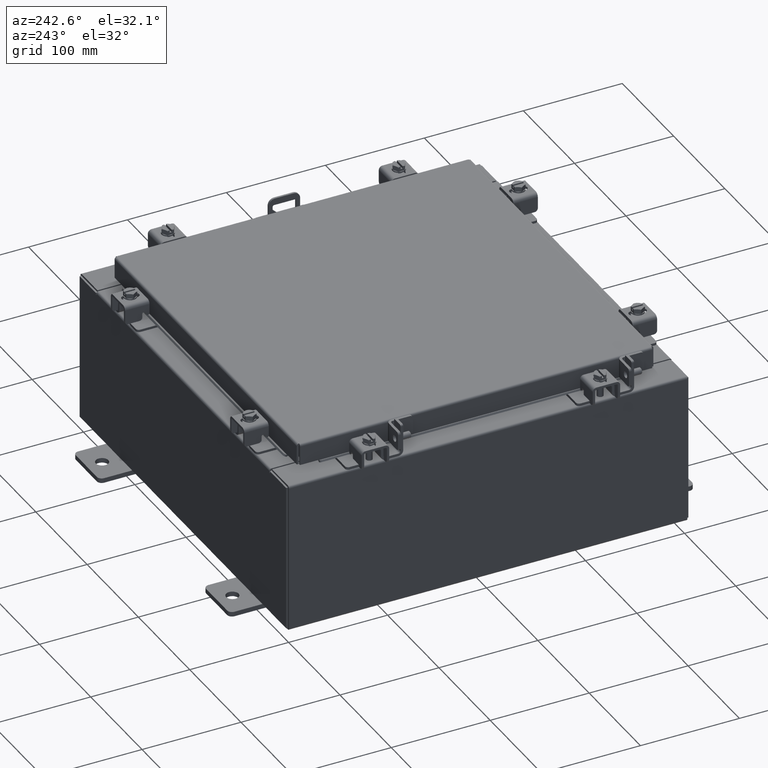
[diagram: clean part render]
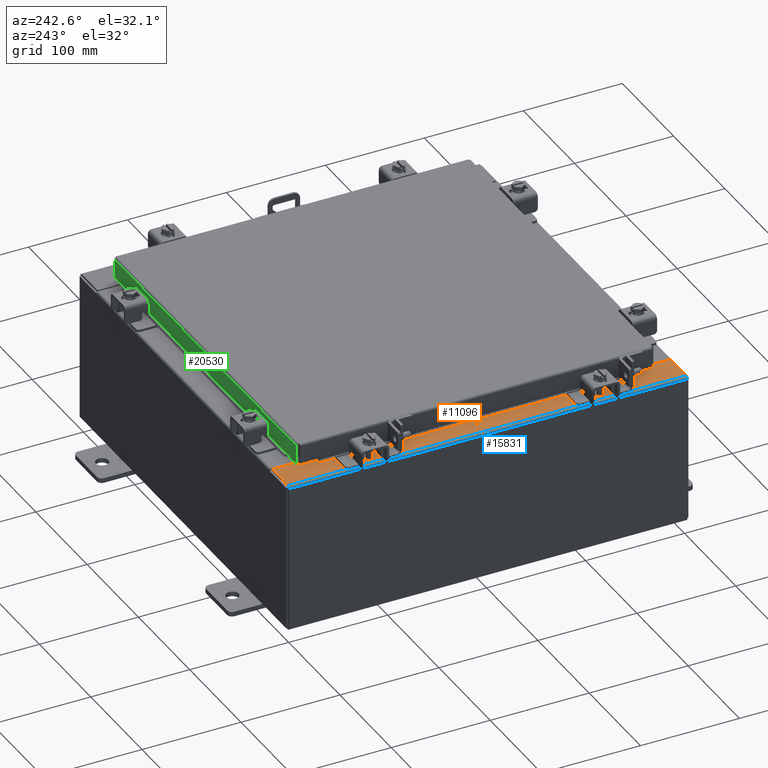
[diagram: same view with three faces highlighted in distinct colors, each labeled with its STEP entity id]
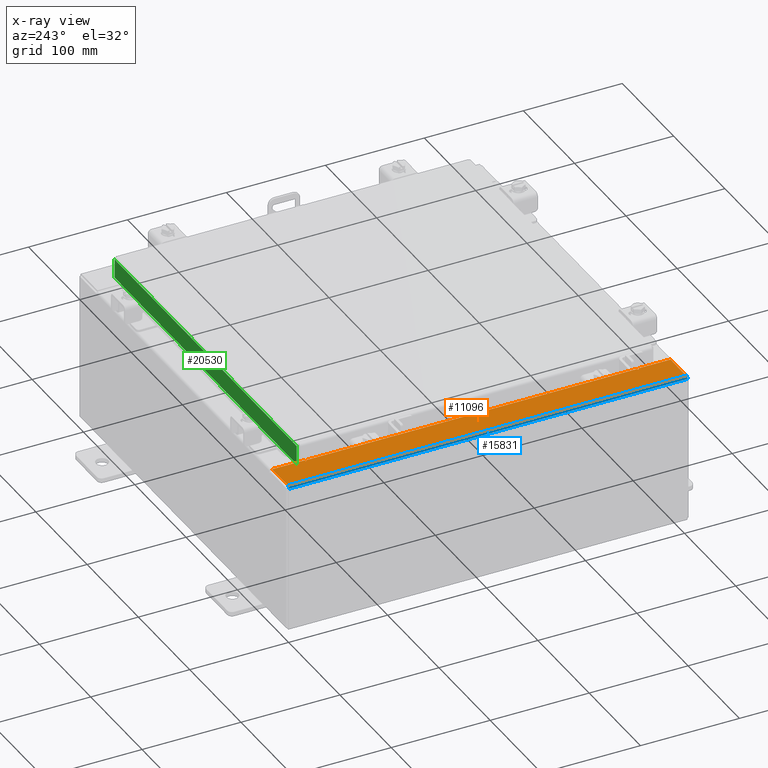
[diagram: x-ray of the same camera — body ghosted, the three highlighted faces saturated]
A machine part, auxiliary view with three faces highlighted in distinct colors.
The next image is the same camera in x-ray (body ghosted, the three faces saturated) — at least one of them is partly hidden behind the body in this view.
Their STEP definitions:

[orange] entity #11096 — the highlighted planar face has unit normal (0, 0, -1).
#105 = EDGE_CURVE ( 'NONE', #4714, #18800, #7681, .T. ) ;
#668 = EDGE_CURVE ( 'NONE', #1194, #4714, #3457, .T. ) ;
#1144 = CARTESIAN_POINT ( 'NONE',  ( -4.252457061908993700E-014, 0.0000000000000000000, 5.925300000000056000 ) ) ;
#1177 = ORIENTED_EDGE ( 'NONE', *, *, #13368, .F. ) ;
#1194 = VERTEX_POINT ( 'NONE', #18381 ) ;
#1311 = ORIENTED_EDGE ( 'NONE', *, *, #16801, .T. ) ;
#1838 = ORIENTED_EDGE ( 'NONE', *, *, #105, .T. ) ;
#2412 = VECTOR ( 'NONE', #14478, 39.37007874015748100 ) ;
#2806 = LINE ( 'NONE', #6536, #11291 ) ;
#2823 = ORIENTED_EDGE ( 'NONE', *, *, #16809, .F. ) ;
#2848 = DIRECTION ( 'NONE',  ( -1.000000000000000000, 0.0000000000000000000, -7.132762385546378400E-015 ) ) ;
#3310 = ORIENTED_EDGE ( 'NONE', *, *, #3847, .F. ) ;
#3401 = VERTEX_POINT ( 'NONE', #12130 ) ;
#3457 = LINE ( 'NONE', #5109, #21037 ) ;
#3685 = CARTESIAN_POINT ( 'NONE',  ( -6.712700000000023000, 6.593749999999999100, 5.925300000000008000 ) ) ;
#3703 = FACE_OUTER_BOUND ( 'NONE', #4366, .T. ) ;
#3706 = VECTOR ( 'NONE', #16696, 39.37007874015748100 ) ;
#3847 = EDGE_CURVE ( 'NONE', #6462, #6764, #21083, .T. ) ;
#4033 = DIRECTION ( 'NONE',  ( 1.000000000000000000, 0.0000000000000000000, 0.0000000000000000000 ) ) ;
#4366 = EDGE_LOOP ( 'NONE', ( #4776, #18856, #1838, #18009, #1311, #19530, #1177, #6792, #18194, #2823, #3310, #18917 ) ) ;
#4714 = VERTEX_POINT ( 'NONE', #14075 ) ;
#4776 = ORIENTED_EDGE ( 'NONE', *, *, #6541, .F. ) ;
#4876 = CARTESIAN_POINT ( 'NONE',  ( -6.750050000000023000, 6.612424999999998200, 5.925300000000008000 ) ) ;
#4968 = DIRECTION ( 'NONE',  ( -4.822655666717293700E-031, 1.000000000000000000, -3.439885693800320600E-045 ) ) ;
#5109 = CARTESIAN_POINT ( 'NONE',  ( -6.699700000000021300, -3.231034617030575100E-030, 5.925300000000008000 ) ) ;
#5501 = CIRCLE ( 'NONE', #10138, 0.01867500000000058700 ) ;
#5527 = CIRCLE ( 'NONE', #16704, 0.01867500000000058700 ) ;
#5573 = CARTESIAN_POINT ( 'NONE',  ( -4.252457061908993700E-014, -7.925300000000000000, 5.925300000000056000 ) ) ;
#5666 = VERTEX_POINT ( 'NONE', #17549 ) ;
#6462 = VERTEX_POINT ( 'NONE', #21707 ) ;
#6536 = CARTESIAN_POINT ( 'NONE',  ( -6.750050000000023000, -6.631099999999999100, 5.925300000000008000 ) ) ;
#6541 = EDGE_CURVE ( 'NONE', #1194, #18229, #16734, .T. ) ;
#6591 = DIRECTION ( 'NONE',  ( 1.000000000000000000, 0.0000000000000000000, 0.0000000000000000000 ) ) ;
#6764 = VERTEX_POINT ( 'NONE', #3685 ) ;
#6792 = ORIENTED_EDGE ( 'NONE', *, *, #12229, .F. ) ;
#7314 = CARTESIAN_POINT ( 'NONE',  ( -6.750050000000023000, -6.631099999999999100, 5.925300000000008000 ) ) ;
#7336 = CARTESIAN_POINT ( 'NONE',  ( -6.712700000000023000, 6.593749999999999100, 5.925300000000008000 ) ) ;
#7463 = VECTOR ( 'NONE', #4033, 39.37007874015748100 ) ;
#7681 = LINE ( 'NONE', #12478, #16738 ) ;
#7971 = DIRECTION ( 'NONE',  ( -7.132762385546378400E-015, -0.0000000000000000000, 1.000000000000000000 ) ) ;
#8220 = CARTESIAN_POINT ( 'NONE',  ( -6.699700000000021300, 6.631100000000000000, 5.925300000000008000 ) ) ;
#8253 = DIRECTION ( 'NONE',  ( 1.000000000000000000, -2.170286390199955400E-014, 0.0000000000000000000 ) ) ;
#8299 = LINE ( 'NONE', #5573, #11742 ) ;
#8334 = LINE ( 'NONE', #18269, #16859 ) ;
#9011 = CARTESIAN_POINT ( 'NONE',  ( -6.699700000000021300, -7.925300000000000000, 5.925300000000008000 ) ) ;
#9606 = CARTESIAN_POINT ( 'NONE',  ( -7.912300000000022300, -7.925300000000000000, 5.925299999999999100 ) ) ;
#10138 = AXIS2_PLACEMENT_3D ( 'NONE', #18172, #7971, #19898 ) ;
#10669 = AXIS2_PLACEMENT_3D ( 'NONE', #1144, #13021, #2848 ) ;
#11096 = ADVANCED_FACE ( 'NONE', ( #3703 ), #19790, .F. ) ;
#11291 = VECTOR ( 'NONE', #8253, 39.37007874015748100 ) ;
#11332 = CARTESIAN_POINT ( 'NONE',  ( -7.912300000000022300, 7.925299999999998200, 5.925299999999999100 ) ) ;
#11742 = VECTOR ( 'NONE', #20907, 39.37007874015748100 ) ;
#11801 = EDGE_CURVE ( 'NONE', #18229, #6462, #5527, .T. ) ;
#12130 = CARTESIAN_POINT ( 'NONE',  ( -6.750050000000023000, -6.593749999999999100, 5.925300000000008000 ) ) ;
#12229 = EDGE_CURVE ( 'NONE', #3401, #15399, #5501, .T. ) ;
#12242 = VERTEX_POINT ( 'NONE', #9606 ) ;
#12478 = CARTESIAN_POINT ( 'NONE',  ( -4.252457061908993700E-014, 7.925299999999998200, 5.925300000000056000 ) ) ;
#12557 = CARTESIAN_POINT ( 'NONE',  ( -6.750050000000023000, 6.593749999999999100, 5.925300000000008000 ) ) ;
#12761 = CARTESIAN_POINT ( 'NONE',  ( -7.912300000000021400, 7.925299999999998200, 5.925299999999999100 ) ) ;
#13021 = DIRECTION ( 'NONE',  ( 7.132762385546378400E-015, 0.0000000000000000000, -1.000000000000000000 ) ) ;
#13052 = CARTESIAN_POINT ( 'NONE',  ( -6.750050000000023000, 6.631099999999998200, 5.925300000000008000 ) ) ;
#13368 = EDGE_CURVE ( 'NONE', #15399, #5666, #2806, .T. ) ;
#13376 = EDGE_CURVE ( 'NONE', #16089, #3401, #19833, .T. ) ;
#14075 = CARTESIAN_POINT ( 'NONE',  ( -6.699700000000021300, 7.925299999999998200, 5.925300000000008000 ) ) ;
#14478 = DIRECTION ( 'NONE',  ( 6.893992640440775600E-017, 1.000000000000000000, 4.917321139196952400E-031 ) ) ;
#15307 = VECTOR ( 'NONE', #20181, 39.37007874015748100 ) ;
#15399 = VERTEX_POINT ( 'NONE', #7314 ) ;
#15675 = EDGE_CURVE ( 'NONE', #16094, #5666, #8334, .T. ) ;
#15976 = LINE ( 'NONE', #12761, #2412 ) ;
#16089 = VERTEX_POINT ( 'NONE', #17576 ) ;
#16094 = VERTEX_POINT ( 'NONE', #9011 ) ;
#16279 = VECTOR ( 'NONE', #19244, 39.37007874015748100 ) ;
#16696 = DIRECTION ( 'NONE',  ( -1.000000000000000000, -2.170286390199955400E-014, 0.0000000000000000000 ) ) ;
#16704 = AXIS2_PLACEMENT_3D ( 'NONE', #4876, #16775, #6591 ) ;
#16734 = LINE ( 'NONE', #8220, #3706 ) ;
#16738 = VECTOR ( 'NONE', #20912, 39.37007874015748100 ) ;
#16775 = DIRECTION ( 'NONE',  ( -7.132762385546378400E-015, -0.0000000000000000000, 1.000000000000000000 ) ) ;
#16801 = EDGE_CURVE ( 'NONE', #12242, #16094, #8299, .T. ) ;
#16809 = EDGE_CURVE ( 'NONE', #6764, #16089, #20293, .T. ) ;
#16859 = VECTOR ( 'NONE', #19983, 39.37007874015748100 ) ;
#17549 = CARTESIAN_POINT ( 'NONE',  ( -6.699700000000021300, -6.631100000000000900, 5.925300000000008000 ) ) ;
#17576 = CARTESIAN_POINT ( 'NONE',  ( -6.712700000000023000, -6.593749999999999100, 5.925300000000008000 ) ) ;
#18009 = ORIENTED_EDGE ( 'NONE', *, *, #18095, .F. ) ;
#18095 = EDGE_CURVE ( 'NONE', #12242, #18800, #15976, .T. ) ;
#18172 = CARTESIAN_POINT ( 'NONE',  ( -6.750050000000023000, -6.612424999999998200, 5.925300000000008000 ) ) ;
#18194 = ORIENTED_EDGE ( 'NONE', *, *, #13376, .F. ) ;
#18229 = VERTEX_POINT ( 'NONE', #13052 ) ;
#18269 = CARTESIAN_POINT ( 'NONE',  ( -6.699700000000021300, -3.231034617030575100E-030, 5.925300000000008000 ) ) ;
#18381 = CARTESIAN_POINT ( 'NONE',  ( -6.699700000000021300, 6.631100000000000000, 5.925300000000008000 ) ) ;
#18800 = VERTEX_POINT ( 'NONE', #11332 ) ;
#18856 = ORIENTED_EDGE ( 'NONE', *, *, #668, .T. ) ;
#18917 = ORIENTED_EDGE ( 'NONE', *, *, #11801, .F. ) ;
#19244 = DIRECTION ( 'NONE',  ( -0.0000000000000000000, -1.000000000000000000, -0.0000000000000000000 ) ) ;
#19530 = ORIENTED_EDGE ( 'NONE', *, *, #15675, .T. ) ;
#19790 = PLANE ( 'NONE',  #10669 ) ;
#19833 = LINE ( 'NONE', #20095, #15307 ) ;
#19898 = DIRECTION ( 'NONE',  ( 1.000000000000000000, 0.0000000000000000000, 0.0000000000000000000 ) ) ;
#19983 = DIRECTION ( 'NONE',  ( -4.822655666717293700E-031, 1.000000000000000000, -3.439885693800320600E-045 ) ) ;
#20095 = CARTESIAN_POINT ( 'NONE',  ( -6.712700000000023000, -6.593749999999999100, 5.925300000000008000 ) ) ;
#20181 = DIRECTION ( 'NONE',  ( -1.000000000000000000, 0.0000000000000000000, 0.0000000000000000000 ) ) ;
#20293 = LINE ( 'NONE', #7336, #16279 ) ;
#20907 = DIRECTION ( 'NONE',  ( 1.000000000000000000, 8.758115402030108600E-047, 7.132762385546378400E-015 ) ) ;
#20912 = DIRECTION ( 'NONE',  ( -1.000000000000000000, -6.146651423996189400E-032, -7.132762385546378400E-015 ) ) ;
#21037 = VECTOR ( 'NONE', #4968, 39.37007874015748100 ) ;
#21083 = LINE ( 'NONE', #12557, #7463 ) ;
#21707 = CARTESIAN_POINT ( 'NONE',  ( -6.750050000000023000, 6.593749999999999100, 5.925300000000008000 ) ) ;

[blue] entity #15831 — the highlighted cylindrical surface (edge-blend (fillet) strip) has radius 2.2276 mm, axis along (-0, -1, -0).
#153 = ORIENTED_EDGE ( 'NONE', *, *, #18095, .T. ) ;
#1061 = DIRECTION ( 'NONE',  ( 0.0000000000000000000, 1.000000000000000000, 0.0000000000000000000 ) ) ;
#1956 = DIRECTION ( 'NONE',  ( 0.0000000000000000000, 0.0000000000000000000, -1.000000000000000000 ) ) ;
#2105 = AXIS2_PLACEMENT_3D ( 'NONE', #3681, #3597, #1956 ) ;
#2412 = VECTOR ( 'NONE', #14478, 39.37007874015748100 ) ;
#2640 = VECTOR ( 'NONE', #1061, 39.37007874015748100 ) ;
#3107 = CARTESIAN_POINT ( 'NONE',  ( -7.912300000000022300, 7.925299999999998200, 5.837599999999999200 ) ) ;
#3408 = EDGE_CURVE ( 'NONE', #12242, #7544, #16540, .T. ) ;
#3459 = DIRECTION ( 'NONE',  ( -0.0000000000000000000, -1.000000000000000000, -0.0000000000000000000 ) ) ;
#3597 = DIRECTION ( 'NONE',  ( -0.0000000000000000000, -1.000000000000000000, -0.0000000000000000000 ) ) ;
#3681 = CARTESIAN_POINT ( 'NONE',  ( -7.912300000000022300, -7.925300000000000000, 5.837599999999999200 ) ) ;
#4719 = EDGE_LOOP ( 'NONE', ( #7708, #21781, #153, #10179 ) ) ;
#4811 = DIRECTION ( 'NONE',  ( 0.0000000000000000000, 0.0000000000000000000, -1.000000000000000000 ) ) ;
#5002 = CIRCLE ( 'NONE', #14420, 0.08770000000000026400 ) ;
#5145 = FACE_OUTER_BOUND ( 'NONE', #4719, .T. ) ;
#5153 = DIRECTION ( 'NONE',  ( -1.245996804407870000E-014, 0.0000000000000000000, 1.000000000000000000 ) ) ;
#7544 = VERTEX_POINT ( 'NONE', #15624 ) ;
#7668 = LINE ( 'NONE', #19712, #2640 ) ;
#7708 = ORIENTED_EDGE ( 'NONE', *, *, #7817, .F. ) ;
#7817 = EDGE_CURVE ( 'NONE', #7544, #10171, #7668, .T. ) ;
#9606 = CARTESIAN_POINT ( 'NONE',  ( -7.912300000000022300, -7.925300000000000000, 5.925299999999999100 ) ) ;
#10171 = VERTEX_POINT ( 'NONE', #17139 ) ;
#10179 = ORIENTED_EDGE ( 'NONE', *, *, #11775, .F. ) ;
#11332 = CARTESIAN_POINT ( 'NONE',  ( -7.912300000000022300, 7.925299999999998200, 5.925299999999999100 ) ) ;
#11775 = EDGE_CURVE ( 'NONE', #10171, #18800, #5002, .T. ) ;
#12242 = VERTEX_POINT ( 'NONE', #9606 ) ;
#12761 = CARTESIAN_POINT ( 'NONE',  ( -7.912300000000021400, 7.925299999999998200, 5.925299999999999100 ) ) ;
#13619 = CARTESIAN_POINT ( 'NONE',  ( -7.912300000000022300, -7.925300000000000900, 5.837599999999999200 ) ) ;
#14420 = AXIS2_PLACEMENT_3D ( 'NONE', #3107, #15004, #4811 ) ;
#14478 = DIRECTION ( 'NONE',  ( 6.893992640440775600E-017, 1.000000000000000000, 4.917321139196952400E-031 ) ) ;
#15004 = DIRECTION ( 'NONE',  ( 0.0000000000000000000, 1.000000000000000000, 0.0000000000000000000 ) ) ;
#15624 = CARTESIAN_POINT ( 'NONE',  ( -8.000000000000023100, -7.925300000000000000, 5.837599999999999200 ) ) ;
#15661 = AXIS2_PLACEMENT_3D ( 'NONE', #13619, #3459, #5153 ) ;
#15831 = ADVANCED_FACE ( 'NONE', ( #5145 ), #17642, .T. ) ;
#15976 = LINE ( 'NONE', #12761, #2412 ) ;
#16540 = CIRCLE ( 'NONE', #2105, 0.08770000000000026400 ) ;
#17139 = CARTESIAN_POINT ( 'NONE',  ( -8.000000000000021300, 7.925299999999998200, 5.837599999999999200 ) ) ;
#17642 = CYLINDRICAL_SURFACE ( 'NONE', #15661, 0.08770000000000026400 ) ;
#18095 = EDGE_CURVE ( 'NONE', #12242, #18800, #15976, .T. ) ;
#18800 = VERTEX_POINT ( 'NONE', #11332 ) ;
#19712 = CARTESIAN_POINT ( 'NONE',  ( -8.000000000000023100, -7.925300000000000900, 5.837599999999999200 ) ) ;
#21781 = ORIENTED_EDGE ( 'NONE', *, *, #3408, .F. ) ;

[green] entity #20530 — the highlighted planar face has unit normal (0, -1, -0).
#101 = DIRECTION ( 'NONE',  ( -1.000000000000000000, -3.535949605205711300E-031, -9.638176865770746200E-046 ) ) ;
#215 = ORIENTED_EDGE ( 'NONE', *, *, #4911, .T. ) ;
#686 = ORIENTED_EDGE ( 'NONE', *, *, #10591, .F. ) ;
#915 = CARTESIAN_POINT ( 'NONE',  ( -6.239157864376272400, 7.094000000000000300, -0.8500000000000024200 ) ) ;
#990 = DIRECTION ( 'NONE',  ( 1.000000000000000000, -0.0000000000000000000, -0.0000000000000000000 ) ) ;
#1783 = CARTESIAN_POINT ( 'NONE',  ( -2.508402649932931100E-030, 7.094000000000000300, 2.025795506403866100E-014 ) ) ;
#2401 = VECTOR ( 'NONE', #16225, 39.37007874015748100 ) ;
#2471 = EDGE_LOOP ( 'NONE', ( #686, #215, #8247, #11349, #14219, #17856 ) ) ;
#3066 = EDGE_CURVE ( 'NONE', #12383, #13679, #16937, .T. ) ;
#3483 = PLANE ( 'NONE',  #5442 ) ;
#3841 = DIRECTION ( 'NONE',  ( 1.000000000000000000, 4.379057701015054300E-047, 1.254380613084043100E-016 ) ) ;
#4615 = EDGE_CURVE ( 'NONE', #13679, #7859, #21326, .T. ) ;
#4871 = CARTESIAN_POINT ( 'NONE',  ( -6.989157864376270600, 7.094000000000000300, -0.08770000000000007000 ) ) ;
#4911 = EDGE_CURVE ( 'NONE', #6514, #7859, #21041, .T. ) ;
#5180 = DIRECTION ( 'NONE',  ( 0.0000000000000000000, 2.818880942772353800E-015, -1.000000000000000000 ) ) ;
#5442 = AXIS2_PLACEMENT_3D ( 'NONE', #1783, #8529, #5180 ) ;
#6514 = VERTEX_POINT ( 'NONE', #11477 ) ;
#6761 = EDGE_CURVE ( 'NONE', #9661, #19978, #12996, .T. ) ;
#6773 = CARTESIAN_POINT ( 'NONE',  ( -6.239157864376272400, 7.094000000000000300, -0.8500000000000024200 ) ) ;
#7264 = CARTESIAN_POINT ( 'NONE',  ( -6.989157864376270600, 7.094000000000002100, -0.8500000000000014200 ) ) ;
#7580 = VECTOR ( 'NONE', #12052, 39.37007874015748100 ) ;
#7853 = CARTESIAN_POINT ( 'NONE',  ( 6.989157864376268800, 7.094000000000002100, -0.8499999999999996400 ) ) ;
#7859 = VERTEX_POINT ( 'NONE', #7853 ) ;
#8247 = ORIENTED_EDGE ( 'NONE', *, *, #4615, .F. ) ;
#8529 = DIRECTION ( 'NONE',  ( 3.535949605205710500E-031, -1.000000000000000000, -2.818880942772353800E-015 ) ) ;
#8636 = CARTESIAN_POINT ( 'NONE',  ( -7.078000000000003800, 7.094000000000002100, -0.8500000000000014200 ) ) ;
#9377 = CARTESIAN_POINT ( 'NONE',  ( 6.989157864376268800, 7.094000000000000300, 2.025795506403866100E-014 ) ) ;
#9661 = VERTEX_POINT ( 'NONE', #4871 ) ;
#9980 = FACE_OUTER_BOUND ( 'NONE', #2471, .T. ) ;
#10275 = CARTESIAN_POINT ( 'NONE',  ( -7.078000000000002100, 7.094000000000000300, -0.08770000000000007000 ) ) ;
#10591 = EDGE_CURVE ( 'NONE', #6514, #9661, #18262, .T. ) ;
#10647 = EDGE_CURVE ( 'NONE', #19978, #12383, #13716, .T. ) ;
#11349 = ORIENTED_EDGE ( 'NONE', *, *, #3066, .F. ) ;
#11477 = CARTESIAN_POINT ( 'NONE',  ( 6.989157864376268800, 7.094000000000000300, -0.08770000000000007000 ) ) ;
#12052 = DIRECTION ( 'NONE',  ( -0.0000000000000000000, 2.818880942772353800E-015, -1.000000000000000000 ) ) ;
#12383 = VERTEX_POINT ( 'NONE', #6773 ) ;
#12996 = LINE ( 'NONE', #18919, #7580 ) ;
#13679 = VERTEX_POINT ( 'NONE', #16332 ) ;
#13716 = LINE ( 'NONE', #8636, #21739 ) ;
#14219 = ORIENTED_EDGE ( 'NONE', *, *, #10647, .F. ) ;
#14259 = VECTOR ( 'NONE', #101, 39.37007874015748100 ) ;
#16225 = DIRECTION ( 'NONE',  ( 0.0000000000000000000, 2.818880942772353800E-015, -1.000000000000000000 ) ) ;
#16234 = VECTOR ( 'NONE', #3841, 39.37007874015748100 ) ;
#16332 = CARTESIAN_POINT ( 'NONE',  ( 6.239157864376261700, 7.094000000000000300, -0.8500000000000024200 ) ) ;
#16937 = LINE ( 'NONE', #915, #21490 ) ;
#17856 = ORIENTED_EDGE ( 'NONE', *, *, #6761, .F. ) ;
#18262 = LINE ( 'NONE', #10275, #14259 ) ;
#18844 = DIRECTION ( 'NONE',  ( 1.000000000000000000, 4.379057701015054300E-047, 1.254380613084043100E-016 ) ) ;
#18919 = CARTESIAN_POINT ( 'NONE',  ( -6.989157864376270600, 7.094000000000000300, -0.07469999999999978000 ) ) ;
#19978 = VERTEX_POINT ( 'NONE', #7264 ) ;
#20530 = ADVANCED_FACE ( 'NONE', ( #9980 ), #3483, .F. ) ;
#20811 = CARTESIAN_POINT ( 'NONE',  ( -7.078000000000003800, 7.094000000000002100, -0.8500000000000014200 ) ) ;
#21041 = LINE ( 'NONE', #9377, #2401 ) ;
#21326 = LINE ( 'NONE', #20811, #16234 ) ;
#21490 = VECTOR ( 'NONE', #990, 39.37007874015748100 ) ;
#21739 = VECTOR ( 'NONE', #18844, 39.37007874015748100 ) ;